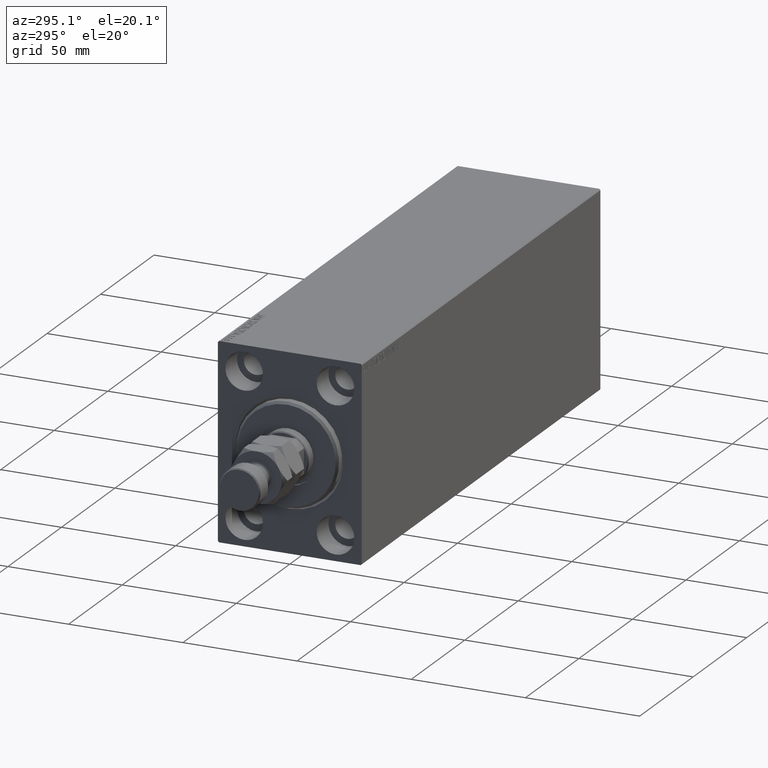
[diagram: clean part render]
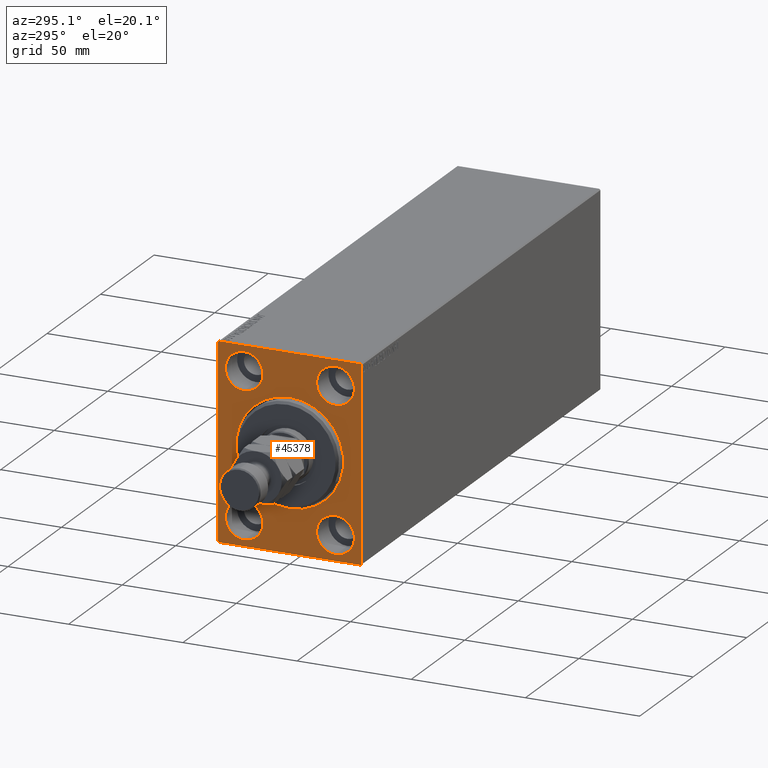
[diagram: same view with one face highlighted and labeled with its STEP entity id]
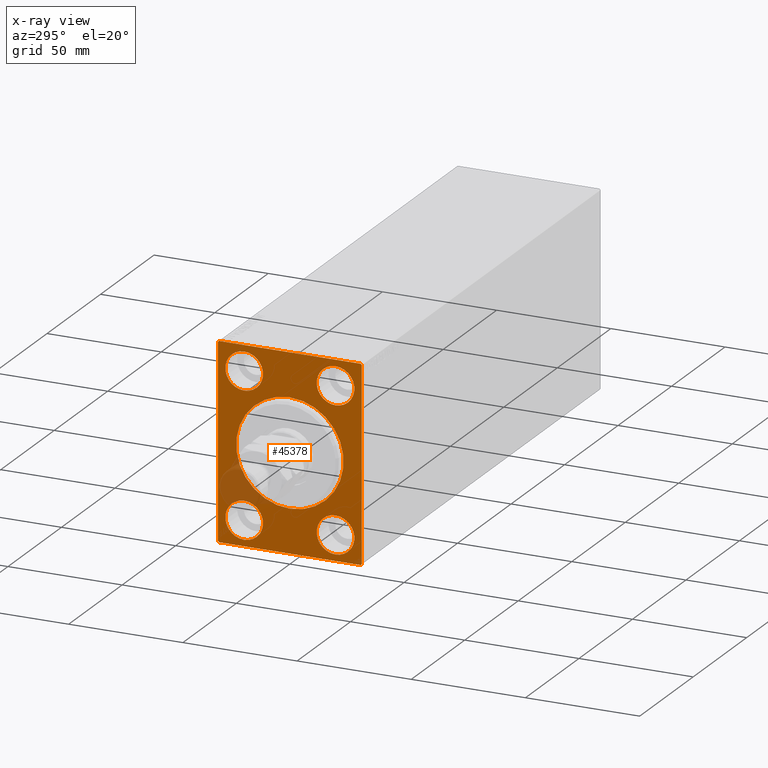
[diagram: x-ray of the same camera — body ghosted, the highlighted face saturated]
A machine part, auxiliary view. The second image highlights one B-rep face of the part: STEP entity #45378.
The next image is the same camera in x-ray: the body ghosted, the highlighted face saturated — about 8% of this face is hidden behind the body in this view.
In plain terms, the highlighted planar face has unit normal (1, 0, 0).
Its self-contained STEP definition (entity closure, byte-faithful):
#467 = ORIENTED_EDGE ( 'NONE', *, *, #21716, .F. ) ;
#942 = DIRECTION ( 'NONE',  ( 0.000000000000000000, 0.000000000000000000, -1.000000000000000000 ) ) ;
#1071 = CARTESIAN_POINT ( 'NONE',  ( 0.000000000000000000, -31.00000000000000000, -42.50000000000000711 ) ) ;
#1132 = LINE ( 'NONE', #15125, #23149 ) ;
#1159 = FACE_BOUND ( 'NONE', #14851, .T. ) ;
#1379 = EDGE_CURVE ( 'NONE', #6824, #30639, #1761, .T. ) ;
#1438 = AXIS2_PLACEMENT_3D ( 'NONE', #25004, #21332, #7756 ) ;
#1508 = CIRCLE ( 'NONE', #3738, 8.250000000000000000 ) ;
#1761 = LINE ( 'NONE', #15298, #44607 ) ;
#2117 = AXIS2_PLACEMENT_3D ( 'NONE', #23293, #12027, #37288 ) ;
#3161 = DIRECTION ( 'NONE',  ( -0.000000000000000000, 0.7071067811865376918, -0.7071067811865574537 ) ) ;
#3351 = ORIENTED_EDGE ( 'NONE', *, *, #4945, .F. ) ;
#3547 = CARTESIAN_POINT ( 'NONE',  ( 0.000000000000000000, -20.00000000000000355, -31.49999999999999289 ) ) ;
#3738 = AXIS2_PLACEMENT_3D ( 'NONE', #10651, #31336, #14330 ) ;
#4079 = EDGE_LOOP ( 'NONE', ( #36674, #21825 ) ) ;
#4334 = CARTESIAN_POINT ( 'NONE',  ( 0.000000000000000000, 19.99999999999999645, -23.24999999999999289 ) ) ;
#4945 = EDGE_CURVE ( 'NONE', #5094, #36181, #40685, .T. ) ;
#5094 = VERTEX_POINT ( 'NONE', #21508 ) ;
#5355 = VERTEX_POINT ( 'NONE', #40448 ) ;
#5576 = CARTESIAN_POINT ( 'NONE',  ( 0.000000000000000000, 31.50000000000000000, 41.99999999999999289 ) ) ;
#5674 = DIRECTION ( 'NONE',  ( 0.000000000000000000, 0.000000000000000000, 1.000000000000000000 ) ) ;
#6530 = DIRECTION ( 'NONE',  ( 0.000000000000000000, 0.000000000000000000, 1.000000000000000000 ) ) ;
#6824 = VERTEX_POINT ( 'NONE', #23066 ) ;
#7408 = VERTEX_POINT ( 'NONE', #39718 ) ;
#7498 = CARTESIAN_POINT ( 'NONE',  ( 0.000000000000000000, 20.00000000000000355, 23.25000000000000355 ) ) ;
#7551 = DIRECTION ( 'NONE',  ( 0.000000000000000000, 0.000000000000000000, 1.000000000000000000 ) ) ;
#7589 = FACE_OUTER_BOUND ( 'NONE', #26511, .T. ) ;
#7756 = DIRECTION ( 'NONE',  ( 0.000000000000000000, 0.000000000000000000, 1.000000000000000000 ) ) ;
#8419 = ORIENTED_EDGE ( 'NONE', *, *, #42944, .F. ) ;
#8480 = ORIENTED_EDGE ( 'NONE', *, *, #23519, .F. ) ;
#8573 = CIRCLE ( 'NONE', #21046, 8.250000000000000000 ) ;
#8713 = DIRECTION ( 'NONE',  ( 0.000000000000000000, 0.000000000000000000, -1.000000000000000000 ) ) ;
#8939 = VERTEX_POINT ( 'NONE', #4334 ) ;
#8948 = ORIENTED_EDGE ( 'NONE', *, *, #22284, .T. ) ;
#9052 = CARTESIAN_POINT ( 'NONE',  ( 0.000000000000000000, 20.00000000000000355, 39.74999999999999289 ) ) ;
#9157 = DIRECTION ( 'NONE',  ( 1.000000000000000000, 0.000000000000000000, 0.000000000000000000 ) ) ;
#9282 = EDGE_CURVE ( 'NONE', #31149, #5355, #25182, .T. ) ;
#9749 = ORIENTED_EDGE ( 'NONE', *, *, #44616, .T. ) ;
#10076 = CARTESIAN_POINT ( 'NONE',  ( 0.000000000000000000, 0.000000000000000000, 0.000000000000000000 ) ) ;
#10166 = CIRCLE ( 'NONE', #16068, 23.50000000000001776 ) ;
#10424 = CARTESIAN_POINT ( 'NONE',  ( 0.000000000000000000, -20.00000000000000355, -31.49999999999999289 ) ) ;
#10651 = CARTESIAN_POINT ( 'NONE',  ( 0.000000000000000000, 19.99999999999999645, -31.49999999999999289 ) ) ;
#10659 = DIRECTION ( 'NONE',  ( 0.000000000000000000, -1.632680918566406300E-16, 1.000000000000000000 ) ) ;
#11932 = DIRECTION ( 'NONE',  ( -0.000000000000000000, -0.7071067811865376918, 0.7071067811865574537 ) ) ;
#12027 = DIRECTION ( 'NONE',  ( -1.000000000000000000, 0.000000000000000000, 0.000000000000000000 ) ) ;
#12316 = EDGE_LOOP ( 'NONE', ( #3351, #22222 ) ) ;
#12868 = EDGE_CURVE ( 'NONE', #31149, #30841, #1132, .T. ) ;
#13084 = DIRECTION ( 'NONE',  ( 1.000000000000000000, 0.000000000000000000, 0.000000000000000000 ) ) ;
#13128 = VECTOR ( 'NONE', #38672, 1000.000000000000000 ) ;
#14097 = DIRECTION ( 'NONE',  ( -1.000000000000000000, 0.000000000000000000, 0.000000000000000000 ) ) ;
#14178 = VERTEX_POINT ( 'NONE', #1071 ) ;
#14330 = DIRECTION ( 'NONE',  ( 0.000000000000000000, 0.000000000000000000, 1.000000000000000000 ) ) ;
#14480 = FACE_BOUND ( 'NONE', #4079, .T. ) ;
#14505 = LINE ( 'NONE', #28541, #24880 ) ;
#14674 = DIRECTION ( 'NONE',  ( -1.000000000000000000, 0.000000000000000000, 0.000000000000000000 ) ) ;
#14851 = EDGE_LOOP ( 'NONE', ( #38773, #8948 ) ) ;
#15125 = CARTESIAN_POINT ( 'NONE',  ( 0.000000000000000000, 31.50000000000001421, -42.50000000000000711 ) ) ;
#15298 = CARTESIAN_POINT ( 'NONE',  ( 0.000000000000000000, -31.50000000000000000, 41.99999999999996447 ) ) ;
#15738 = CARTESIAN_POINT ( 'NONE',  ( 0.000000000000000000, -31.50000000000000000, -41.99999999999999289 ) ) ;
#16002 = VERTEX_POINT ( 'NONE', #32359 ) ;
#16068 = AXIS2_PLACEMENT_3D ( 'NONE', #10076, #13084, #27132 ) ;
#16896 = EDGE_CURVE ( 'NONE', #8939, #16002, #8573, .T. ) ;
#16978 = EDGE_CURVE ( 'NONE', #36181, #5094, #19607, .T. ) ;
#17081 = EDGE_CURVE ( 'NONE', #30948, #30841, #21301, .T. ) ;
#17325 = LINE ( 'NONE', #24670, #13128 ) ;
#17350 = VERTEX_POINT ( 'NONE', #7498 ) ;
#17570 = VECTOR ( 'NONE', #25895, 1000.000000000000000 ) ;
#17711 = EDGE_LOOP ( 'NONE', ( #31355, #8419 ) ) ;
#17930 = ORIENTED_EDGE ( 'NONE', *, *, #1379, .T. ) ;
#18314 = ORIENTED_EDGE ( 'NONE', *, *, #23039, .F. ) ;
#18839 = LINE ( 'NONE', #29402, #43952 ) ;
#18996 = ORIENTED_EDGE ( 'NONE', *, *, #21802, .F. ) ;
#19362 = CARTESIAN_POINT ( 'NONE',  ( 0.000000000000000000, -20.00000000000000355, -23.24999999999999289 ) ) ;
#19515 = CARTESIAN_POINT ( 'NONE',  ( 0.000000000000000000, 0.000000000000000000, 0.000000000000000000 ) ) ;
#19607 = CIRCLE ( 'NONE', #34250, 8.249999999999992895 ) ;
#20331 = VECTOR ( 'NONE', #3161, 999.9999999999998863 ) ;
#21046 = AXIS2_PLACEMENT_3D ( 'NONE', #21806, #32367, #7551 ) ;
#21053 = VERTEX_POINT ( 'NONE', #19362 ) ;
#21069 = CARTESIAN_POINT ( 'NONE',  ( 0.000000000000000000, 31.00000000000000000, 42.50000000000000711 ) ) ;
#21301 = LINE ( 'NONE', #21069, #20331 ) ;
#21332 = DIRECTION ( 'NONE',  ( -1.000000000000000000, 0.000000000000000000, 0.000000000000000000 ) ) ;
#21508 = CARTESIAN_POINT ( 'NONE',  ( 0.000000000000000000, -19.99999999999999645, 39.74999999999999289 ) ) ;
#21716 = EDGE_CURVE ( 'NONE', #7408, #21053, #31467, .T. ) ;
#21751 = EDGE_CURVE ( 'NONE', #21053, #7408, #29273, .T. ) ;
#21802 = EDGE_CURVE ( 'NONE', #30948, #30639, #17325, .T. ) ;
#21806 = CARTESIAN_POINT ( 'NONE',  ( 0.000000000000000000, 19.99999999999999645, -31.49999999999999289 ) ) ;
#21825 = ORIENTED_EDGE ( 'NONE', *, *, #30624, .F. ) ;
#22222 = ORIENTED_EDGE ( 'NONE', *, *, #16978, .F. ) ;
#22284 = EDGE_CURVE ( 'NONE', #36518, #41869, #10166, .T. ) ;
#23039 = EDGE_CURVE ( 'NONE', #6824, #25596, #14505, .T. ) ;
#23056 = VECTOR ( 'NONE', #39178, 999.9999999999998863 ) ;
#23066 = CARTESIAN_POINT ( 'NONE',  ( 0.000000000000000000, -31.50000000000000000, 41.99999999999996447 ) ) ;
#23149 = VECTOR ( 'NONE', #10659, 1000.000000000000000 ) ;
#23293 = CARTESIAN_POINT ( 'NONE',  ( 0.000000000000000000, 20.00000000000000355, 31.50000000000000000 ) ) ;
#23519 = EDGE_CURVE ( 'NONE', #14178, #5355, #25667, .T. ) ;
#24670 = CARTESIAN_POINT ( 'NONE',  ( 0.000000000000000000, 31.50000000000000000, 42.50000000000000711 ) ) ;
#24722 = CARTESIAN_POINT ( 'NONE',  ( 0.000000000000000000, 31.50000000000001421, -42.00000000000000711 ) ) ;
#24830 = CARTESIAN_POINT ( 'NONE',  ( 0.000000000000000000, 0.000000000000000000, 0.000000000000000000 ) ) ;
#24880 = VECTOR ( 'NONE', #35638, 1000.000000000000000 ) ;
#25004 = CARTESIAN_POINT ( 'NONE',  ( 0.000000000000000000, 20.00000000000000355, 31.50000000000000000 ) ) ;
#25182 = LINE ( 'NONE', #24722, #23056 ) ;
#25442 = ORIENTED_EDGE ( 'NONE', *, *, #9282, .T. ) ;
#25596 = VERTEX_POINT ( 'NONE', #15738 ) ;
#25667 = LINE ( 'NONE', #44009, #17570 ) ;
#25895 = DIRECTION ( 'NONE',  ( 0.000000000000000000, 1.000000000000000000, 0.000000000000000000 ) ) ;
#26378 = CARTESIAN_POINT ( 'NONE',  ( 0.000000000000000000, -19.99999999999999645, 31.50000000000000000 ) ) ;
#26492 = CARTESIAN_POINT ( 'NONE',  ( 0.000000000000000000, 0.000000000000000000, 23.50000000000001776 ) ) ;
#26511 = EDGE_LOOP ( 'NONE', ( #18314, #17930, #18996, #38357, #38764, #25442, #8480, #9749 ) ) ;
#26574 = DIRECTION ( 'NONE',  ( -0.000000000000000000, 0.7071067811865474617, 0.7071067811865474617 ) ) ;
#26890 = CARTESIAN_POINT ( 'NONE',  ( 0.000000000000000000, -19.99999999999999645, 23.25000000000000355 ) ) ;
#27132 = DIRECTION ( 'NONE',  ( 0.000000000000000000, 0.000000000000000000, -1.000000000000000000 ) ) ;
#27334 = EDGE_LOOP ( 'NONE', ( #42719, #467 ) ) ;
#28130 = DIRECTION ( 'NONE',  ( 0.000000000000000000, 0.000000000000000000, 1.000000000000000000 ) ) ;
#28541 = CARTESIAN_POINT ( 'NONE',  ( 0.000000000000000000, -31.50000000000000000, 42.49999999999999289 ) ) ;
#28956 = FACE_BOUND ( 'NONE', #27334, .T. ) ;
#29178 = FACE_BOUND ( 'NONE', #12316, .T. ) ;
#29273 = CIRCLE ( 'NONE', #36576, 8.250000000000000000 ) ;
#29402 = CARTESIAN_POINT ( 'NONE',  ( 0.000000000000000000, -31.00000000000000000, -42.50000000000000711 ) ) ;
#30624 = EDGE_CURVE ( 'NONE', #16002, #8939, #1508, .T. ) ;
#30639 = VERTEX_POINT ( 'NONE', #45340 ) ;
#30841 = VERTEX_POINT ( 'NONE', #5576 ) ;
#30948 = VERTEX_POINT ( 'NONE', #31276 ) ;
#31149 = VERTEX_POINT ( 'NONE', #42758 ) ;
#31276 = CARTESIAN_POINT ( 'NONE',  ( 0.000000000000000000, 31.00000000000000000, 42.50000000000000711 ) ) ;
#31336 = DIRECTION ( 'NONE',  ( -1.000000000000000000, 0.000000000000000000, 0.000000000000000000 ) ) ;
#31355 = ORIENTED_EDGE ( 'NONE', *, *, #44762, .F. ) ;
#31467 = CIRCLE ( 'NONE', #44640, 8.250000000000000000 ) ;
#31488 = CIRCLE ( 'NONE', #1438, 8.249999999999992895 ) ;
#31941 = PLANE ( 'NONE',  #36636 ) ;
#32209 = EDGE_CURVE ( 'NONE', #41869, #36518, #36735, .T. ) ;
#32300 = CARTESIAN_POINT ( 'NONE',  ( 0.000000000000000000, 2.877919977996282293E-15, -23.50000000000001776 ) ) ;
#32359 = CARTESIAN_POINT ( 'NONE',  ( 0.000000000000000000, 19.99999999999999645, -39.74999999999999289 ) ) ;
#32367 = DIRECTION ( 'NONE',  ( -1.000000000000000000, 0.000000000000000000, 0.000000000000000000 ) ) ;
#32616 = AXIS2_PLACEMENT_3D ( 'NONE', #26378, #44035, #5674 ) ;
#34250 = AXIS2_PLACEMENT_3D ( 'NONE', #39031, #14674, #39470 ) ;
#35638 = DIRECTION ( 'NONE',  ( 0.000000000000000000, 0.000000000000000000, -1.000000000000000000 ) ) ;
#36181 = VERTEX_POINT ( 'NONE', #26890 ) ;
#36518 = VERTEX_POINT ( 'NONE', #32300 ) ;
#36576 = AXIS2_PLACEMENT_3D ( 'NONE', #3547, #41673, #6530 ) ;
#36636 = AXIS2_PLACEMENT_3D ( 'NONE', #24830, #38835, #942 ) ;
#36674 = ORIENTED_EDGE ( 'NONE', *, *, #16896, .F. ) ;
#36735 = CIRCLE ( 'NONE', #37487, 23.50000000000001776 ) ;
#37288 = DIRECTION ( 'NONE',  ( 0.000000000000000000, 0.000000000000000000, 1.000000000000000000 ) ) ;
#37487 = AXIS2_PLACEMENT_3D ( 'NONE', #19515, #9157, #8713 ) ;
#38357 = ORIENTED_EDGE ( 'NONE', *, *, #17081, .T. ) ;
#38672 = DIRECTION ( 'NONE',  ( 0.000000000000000000, -1.000000000000000000, -2.202823461557850341E-16 ) ) ;
#38764 = ORIENTED_EDGE ( 'NONE', *, *, #12868, .F. ) ;
#38773 = ORIENTED_EDGE ( 'NONE', *, *, #32209, .T. ) ;
#38835 = DIRECTION ( 'NONE',  ( 1.000000000000000000, 0.000000000000000000, 0.000000000000000000 ) ) ;
#39031 = CARTESIAN_POINT ( 'NONE',  ( 0.000000000000000000, -19.99999999999999645, 31.50000000000000000 ) ) ;
#39065 = FACE_BOUND ( 'NONE', #17711, .T. ) ;
#39178 = DIRECTION ( 'NONE',  ( 0.000000000000000000, -0.7071067811865574537, -0.7071067811865376918 ) ) ;
#39470 = DIRECTION ( 'NONE',  ( 0.000000000000000000, 0.000000000000000000, 1.000000000000000000 ) ) ;
#39718 = CARTESIAN_POINT ( 'NONE',  ( 0.000000000000000000, -20.00000000000000355, -39.74999999999999289 ) ) ;
#40448 = CARTESIAN_POINT ( 'NONE',  ( 0.000000000000000000, 31.00000000000000000, -42.50000000000000711 ) ) ;
#40631 = VERTEX_POINT ( 'NONE', #9052 ) ;
#40685 = CIRCLE ( 'NONE', #32616, 8.249999999999992895 ) ;
#41673 = DIRECTION ( 'NONE',  ( -1.000000000000000000, 0.000000000000000000, 0.000000000000000000 ) ) ;
#41869 = VERTEX_POINT ( 'NONE', #26492 ) ;
#42719 = ORIENTED_EDGE ( 'NONE', *, *, #21751, .F. ) ;
#42758 = CARTESIAN_POINT ( 'NONE',  ( 0.000000000000000000, 31.50000000000001421, -42.00000000000000711 ) ) ;
#42944 = EDGE_CURVE ( 'NONE', #17350, #40631, #44633, .T. ) ;
#43952 = VECTOR ( 'NONE', #11932, 999.9999999999998863 ) ;
#44009 = CARTESIAN_POINT ( 'NONE',  ( 0.000000000000000000, -31.50000000000000000, -42.50000000000000711 ) ) ;
#44035 = DIRECTION ( 'NONE',  ( -1.000000000000000000, 0.000000000000000000, 0.000000000000000000 ) ) ;
#44607 = VECTOR ( 'NONE', #26574, 1000.000000000000114 ) ;
#44616 = EDGE_CURVE ( 'NONE', #14178, #25596, #18839, .T. ) ;
#44633 = CIRCLE ( 'NONE', #2117, 8.249999999999992895 ) ;
#44640 = AXIS2_PLACEMENT_3D ( 'NONE', #10424, #14097, #28130 ) ;
#44762 = EDGE_CURVE ( 'NONE', #40631, #17350, #31488, .T. ) ;
#45340 = CARTESIAN_POINT ( 'NONE',  ( 0.000000000000000000, -30.99999999999997158, 42.49999999999999289 ) ) ;
#45378 = ADVANCED_FACE ( 'NONE', ( #1159, #14480, #29178, #39065, #28956, #7589 ), #31941, .F. ) ;